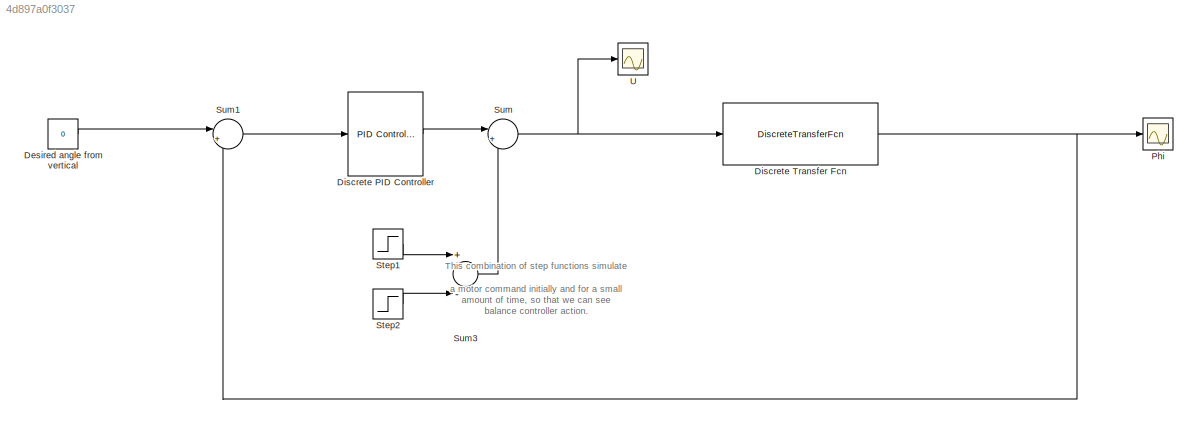
MODEL slx_4d897a0f3037
KIND model
CONFIG AbsTol = auto
CONFIG EnableMultiTasking = off
CONFIG FixedStep = auto
CONFIG MaxStep = auto
CONFIG MinStep = auto
CONFIG RelTol = 1e-3
CONFIG SampleTimeConstraint = Unconstrained
CONFIG Solver = VariableStepAuto
CONFIG SolverName = VariableStepAuto
CONFIG StartTime = 0.0
CONFIG StopTime = 10.0
BLOCK [Constant] Desired angle from vertical
  Value = 0
BLOCK [Reference] Discrete PID Controller  REF=simulink/Continuous/PID Controller
  Ports = [1, 1]
  SourceBlock = simulink/Continuous/PID Controller
  SourceProductBaseCode = SL
  SourceProductName = Simulink
  SourceType = PID 1dof
BLOCK [DiscreteTransferFcn] Discrete Transfer Fcn
  Denominator = phi_u_z_den
  InputPortMap = u0
  Numerator = phi_u_z_num
  Ports = [1, 1]
  SampleTime = sample_period_Ts
BLOCK [Scope] Phi
  NumInputPorts = 1
  Ports = [1]
  ScopeSpecificationString = Simulink.scopes.TimeScopeBlockCfg('CurrentConfiguration', extmgr.ConfigurationSet(extmgr.Configuration('Core','General UI',true),extmgr.Configuration('Core','Source UI',true),extmgr.Configuration('Sources','WiredSimulink',true,'DataLoggingVariableName','ScopeData1'),extmgr.Configuration('Visuals','Time Domain',true,'SerializedDisplays',{struct('MinYLimReal','-0.11111','MaxYLimReal','0.13262','YLab...<+1464ch>
BLOCK [Step] Step1
  After = 2
  SampleTime = 0
BLOCK [Step] Step2
  After = 2
  SampleTime = 0
  Time = 1.1
BLOCK [Sum] Sum
  IconShape = round
  InputSameDT = off
  Inputs = |++
  OutDataTypeStr = Inherit: Inherit via internal rule
  Ports = [2, 1]
  SaturateOnIntegerOverflow = off
BLOCK [Sum] Sum1
  IconShape = round
  InputSameDT = off
  Inputs = |+-
  OutDataTypeStr = Inherit: Inherit via internal rule
  Ports = [2, 1]
  SaturateOnIntegerOverflow = off
BLOCK [Sum] Sum3
  InputSameDT = off
  Inputs = +-
  OutDataTypeStr = Inherit: Inherit via internal rule
  Ports = [2, 1]
  SaturateOnIntegerOverflow = off
BLOCK [Scope] U
  NumInputPorts = 1
  Ports = [1]
  ScopeSpecificationString = Simulink.scopes.TimeScopeBlockCfg('CurrentConfiguration', extmgr.ConfigurationSet(extmgr.Configuration('Core','General UI',true),extmgr.Configuration('Core','Source UI',true),extmgr.Configuration('Sources','WiredSimulink',true),extmgr.Configuration('Visuals','Time Domain',true,'SerializedDisplays',{struct('MinYLimReal','-2.44018','MaxYLimReal','2.49335','YLabelReal','','MinYLimMag','0.00000','MaxY...<+1407ch>
ANNOTATION (root): This combination of step functions simulate a motor command initially and for a small amount of time, so that we can see balance controller action.
LINE Desired angle from vertical:1 -> Sum1:1
LINE Discrete PID Controller:1 -> Sum:1
NET Discrete Transfer Fcn:1 -> Phi:1, Sum1:2
LINE Step1:1 -> Sum3:1
LINE Step2:1 -> Sum3:2
LINE Sum1:1 -> Discrete PID Controller:1
LINE Sum3:1 -> Sum:2
NET Sum:1 -> Discrete Transfer Fcn:1, U:1
note: NET lines group one-source signal fan-out (src -> all destinations, sorted); 1:1 wires keep LINE
